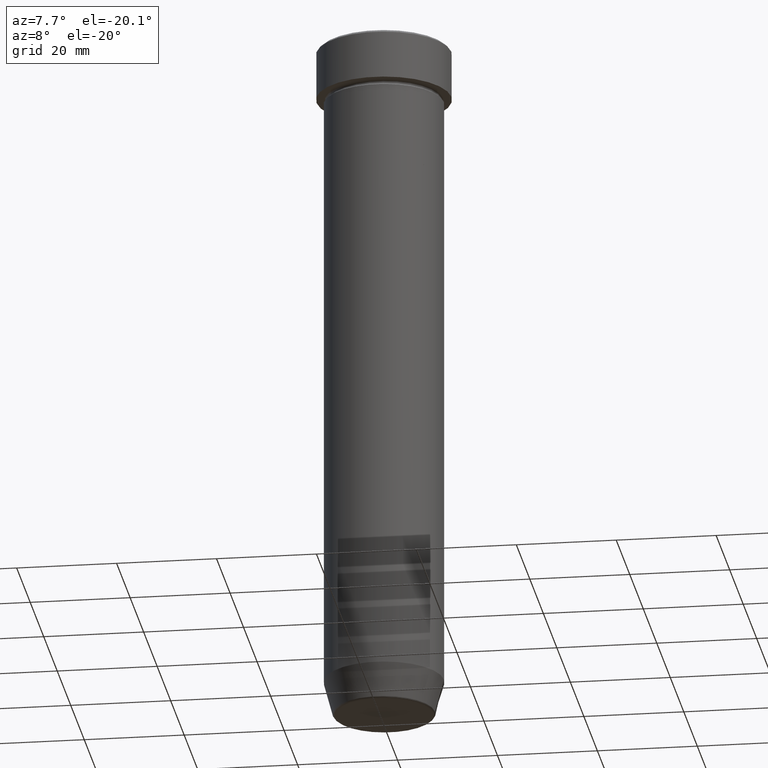
[diagram: clean part render]
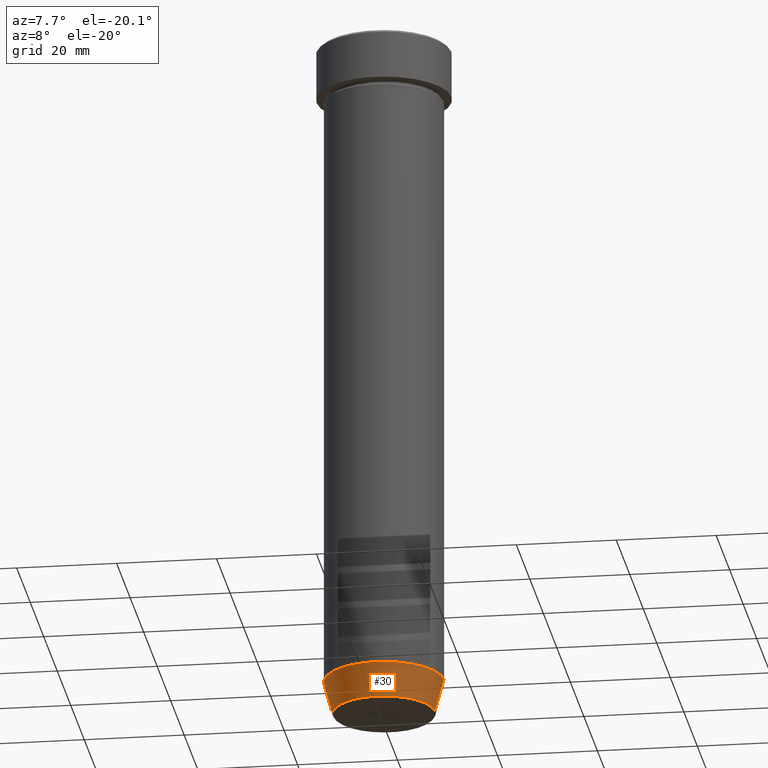
[diagram: same view with one face highlighted and labeled with its STEP entity id]
A machine part, auxiliary view. The second image highlights one B-rep face of the part: STEP entity #30.
In plain terms, the highlighted conical surface has half-angle 15 deg.
Its self-contained STEP definition (entity closure, byte-faithful):
#30 = ADVANCED_FACE ( 'NONE', ( #493 ), #276, .T. ) ;
#51 = CIRCLE ( 'NONE', #94, 10.22365507213718416 ) ;
#53 = DIRECTION ( 'NONE',  ( -0.000000000000000000, -0.000000000000000000, 1.000000000000000000 ) ) ;
#54 = DIRECTION ( 'NONE',  ( -0.000000000000000000, -0.000000000000000000, 1.000000000000000000 ) ) ;
#58 = VERTEX_POINT ( 'NONE', #397 ) ;
#94 = AXIS2_PLACEMENT_3D ( 'NONE', #137, #54, #278 ) ;
#108 = CARTESIAN_POINT ( 'NONE',  ( 12.00000000000000000, 0.000000000000000000, -133.0000000000000000 ) ) ;
#121 = ORIENTED_EDGE ( 'NONE', *, *, #489, .T. ) ;
#130 = DIRECTION ( 'NONE',  ( 0.2588190451025214611, 0.000000000000000000, 0.9659258262890679791 ) ) ;
#137 = CARTESIAN_POINT ( 'NONE',  ( 0.000000000000000000, 0.000000000000000000, -139.6294095225512706 ) ) ;
#151 = VERTEX_POINT ( 'NONE', #108 ) ;
#154 = VECTOR ( 'NONE', #130, 1000.000000000000114 ) ;
#176 = CARTESIAN_POINT ( 'NONE',  ( 10.12435565298213369, 0.000000000000000000, -140.0000000000000000 ) ) ;
#179 = EDGE_CURVE ( 'NONE', #58, #151, #445, .T. ) ;
#182 = AXIS2_PLACEMENT_3D ( 'NONE', #466, #53, #239 ) ;
#185 = DIRECTION ( 'NONE',  ( 1.000000000000000000, 0.000000000000000000, 0.000000000000000000 ) ) ;
#216 = ORIENTED_EDGE ( 'NONE', *, *, #218, .F. ) ;
#218 = EDGE_CURVE ( 'NONE', #413, #151, #246, .T. ) ;
#219 = CARTESIAN_POINT ( 'NONE',  ( -10.22365507213718416, 1.360806402472382153E-15, -139.6294095225512706 ) ) ;
#239 = DIRECTION ( 'NONE',  ( 1.000000000000000000, 0.000000000000000000, 0.000000000000000000 ) ) ;
#246 = CIRCLE ( 'NONE', #182, 12.00000000000000000 ) ;
#251 = ORIENTED_EDGE ( 'NONE', *, *, #179, .T. ) ;
#261 = LINE ( 'NONE', #393, #272 ) ;
#272 = VECTOR ( 'NONE', #597, 1000.000000000000114 ) ;
#276 = CONICAL_SURFACE ( 'NONE', #352, 10.12435565298213369, 0.2617993877991502405 ) ;
#278 = DIRECTION ( 'NONE',  ( -1.000000000000000000, 0.000000000000000000, 0.000000000000000000 ) ) ;
#284 = EDGE_CURVE ( 'NONE', #321, #413, #261, .T. ) ;
#321 = VERTEX_POINT ( 'NONE', #219 ) ;
#352 = AXIS2_PLACEMENT_3D ( 'NONE', #443, #596, #185 ) ;
#393 = CARTESIAN_POINT ( 'NONE',  ( -10.12435565298213369, 1.239875974385398152E-15, -140.0000000000000000 ) ) ;
#397 = CARTESIAN_POINT ( 'NONE',  ( 10.22365507213718416, 0.000000000000000000, -139.6294095225512706 ) ) ;
#413 = VERTEX_POINT ( 'NONE', #552 ) ;
#443 = CARTESIAN_POINT ( 'NONE',  ( 0.000000000000000000, 0.000000000000000000, -140.0000000000000000 ) ) ;
#445 = LINE ( 'NONE', #176, #154 ) ;
#466 = CARTESIAN_POINT ( 'NONE',  ( 0.000000000000000000, 0.000000000000000000, -133.0000000000000000 ) ) ;
#475 = ORIENTED_EDGE ( 'NONE', *, *, #284, .F. ) ;
#478 = EDGE_LOOP ( 'NONE', ( #475, #121, #251, #216 ) ) ;
#489 = EDGE_CURVE ( 'NONE', #321, #58, #51, .T. ) ;
#493 = FACE_OUTER_BOUND ( 'NONE', #478, .T. ) ;
#552 = CARTESIAN_POINT ( 'NONE',  ( -12.00000000000000000, 1.469576158976823947E-15, -133.0000000000000000 ) ) ;
#596 = DIRECTION ( 'NONE',  ( -0.000000000000000000, -0.000000000000000000, 1.000000000000000000 ) ) ;
#597 = DIRECTION ( 'NONE',  ( -0.2588190451025214611, 3.169619151431774186E-17, 0.9659258262890679791 ) ) ;